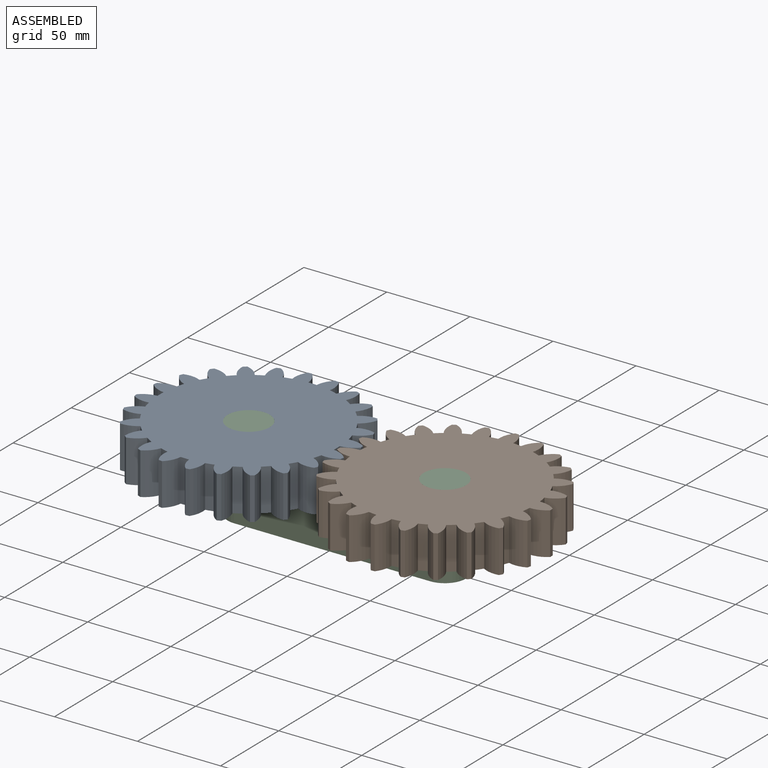
[diagram: assembled view]
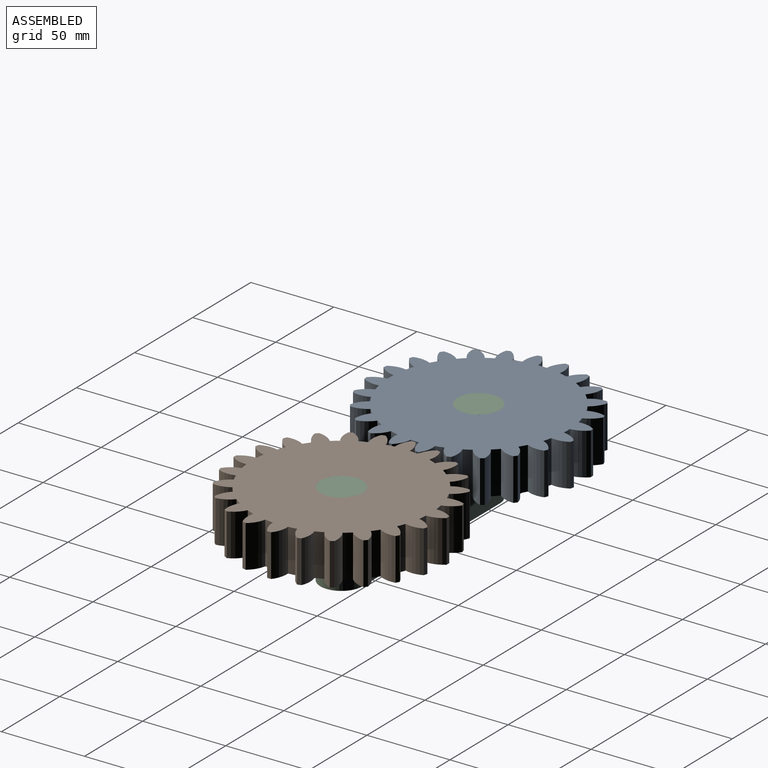
[diagram: assembled view, second angle]
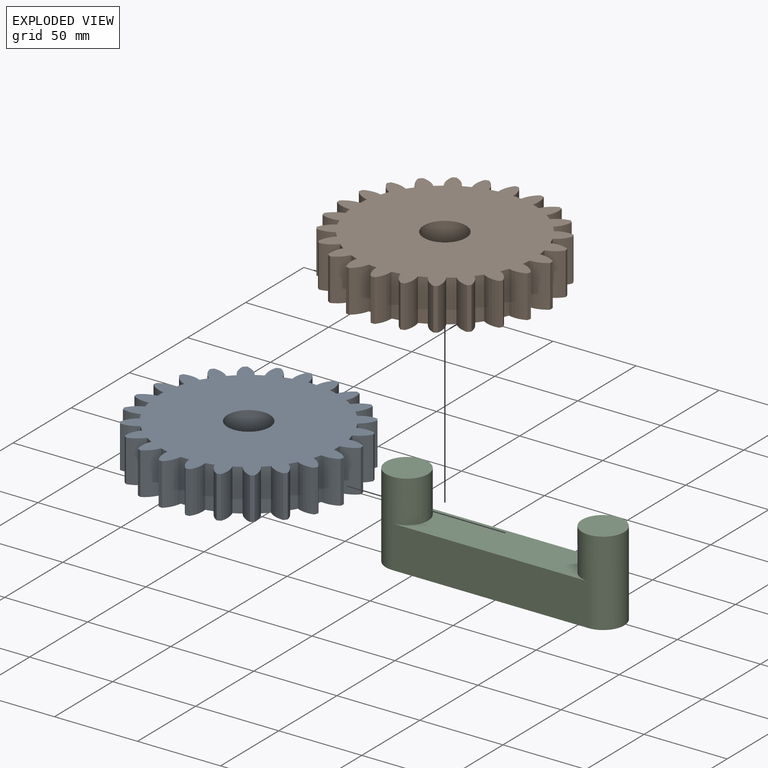
[diagram: exploded view]
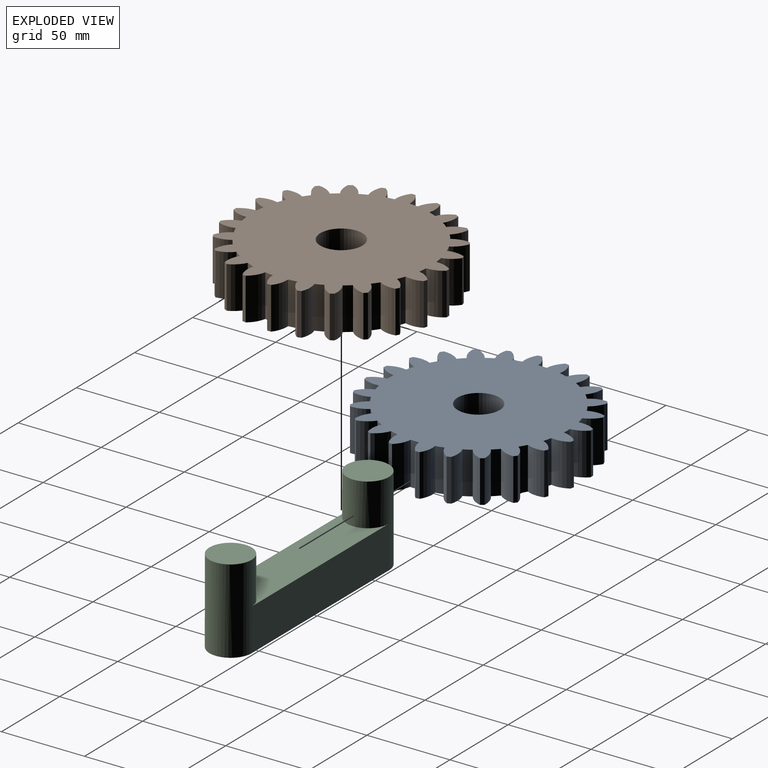
[diagram: exploded view, second angle]
ASSEMBLY  parts=3 mates=2
PART A: 99 faces, bbox 126.9x126.9x25.4 mm
  f0: cylinder r=53.72mm len=25.4mm, axis (0,0,1), area 129.2mm2, adj f23,f28,f29,f47
  f1: cylinder r=53.72mm len=25.4mm, axis (0,0,1), area 129.2mm2, adj f28,f29,f46,f50
  f2: cylinder r=53.72mm len=25.4mm, axis (0,0,1), area 129.2mm2, adj f28,f29,f49,f53
  f3: cylinder r=53.72mm len=25.4mm, axis (0,0,1), area 129.2mm2, adj f28,f29,f59,f62
  f4: cylinder r=53.72mm len=25.4mm, axis (0,0,1), area 129.2mm2, adj f28,f29,f56,f58
  f5: cylinder r=53.72mm len=25.4mm, axis (0,0,1), area 129.2mm2, adj f28,f29,f52,f55
  f6: cylinder r=53.72mm len=25.4mm, axis (0,0,1), area 129.2mm2, adj f28,f29,f61,f65
  f7: cylinder r=53.72mm len=25.4mm, axis (0,0,1), area 129.2mm2, adj f28,f29,f74,f77
  f8: cylinder r=53.72mm len=25.4mm, axis (0,0,1), area 129.2mm2, adj f28,f29,f68,f71
  f9: cylinder r=53.72mm len=25.4mm, axis (0,0,1), area 129.2mm2, adj f28,f29,f64,f67
  f10: cylinder r=53.72mm len=25.4mm, axis (0,0,1), area 129.2mm2, adj f28,f29,f70,f73
  f11: cylinder r=53.72mm len=25.4mm, axis (0,0,1), area 129.2mm2, adj f28,f29,f83,f86
  f12: cylinder r=53.72mm len=25.4mm, axis (0,0,1), area 129.2mm2, adj f28,f29,f76,f80
  f13: cylinder r=53.72mm len=25.4mm, axis (0,0,1), area 129.2mm2, adj f28,f29,f95,f97
  f14: cylinder r=53.72mm len=25.4mm, axis (0,0,1), area 129.2mm2, adj f28,f29,f92,f94
  f15: cylinder r=53.72mm len=25.4mm, axis (0,0,1), area 129.2mm2, adj f28,f29,f35,f38
  f16: cylinder r=53.72mm len=25.4mm, axis (0,0,1), area 129.2mm2, adj f28,f29,f37,f41
  f17: cylinder r=53.72mm len=25.4mm, axis (0,0,1), area 129.2mm2, adj f28,f29,f32,f34
  f18: cylinder r=53.72mm len=25.4mm, axis (0,0,1), area 129.2mm2, adj f28,f29,f40,f43
  f19: cylinder r=53.72mm len=25.4mm, axis (0,0,1), area 129.2mm2, adj f28,f29,f79,f82
  f20: cylinder r=53.72mm len=25.4mm, axis (0,0,1), area 129.2mm2, adj f28,f29,f85,f89
  f21: cylinder r=53.72mm len=25.4mm, axis (0,0,1), area 129.2mm2, adj f28,f29,f88,f91
  f22: cylinder r=53.72mm len=25.4mm, axis (0,0,1), area 129.2mm2, adj f28,f29,f31,f96
  f23: cylinder r=14.61mm len=25.4mm, axis (0,0,1), area 272.6mm2, adj f0,f26,f28,f29
  f24: cylinder r=53.72mm len=25.4mm, axis (0,0,1), area 129.2mm2, adj f25,f28,f29,f44
  f25: cylinder r=14.61mm len=25.4mm, axis (0,0,1), area 272.6mm2, adj f24,f26,f28,f29
  f26: plane 25.4x2.29mm, normal (0.2,0.98,0), area 59.2mm2, adj f23,f25,f28,f29
  f27: cylinder r=12.7mm len=25.4mm, axis (0,0,1), area 2026.8mm2, adj f28,f29
  f28: plane 126.86x126.86mm, normal (0,0,-1), area 10212.5mm2, adj f0,f1,f2,f3,f4,f5,f6,f7
  f29: plane 126.86x126.86mm, normal (0,0,1), area 10212.5mm2, adj f0,f1,f2,f3,f4,f5,f6,f7
  f30: plane 25.4x2.33mm, normal (1,0.07,0), area 59.2mm2, adj f28,f29,f31,f32
  f31: cylinder r=14.61mm len=25.4mm, axis (0,0,1), area 272.6mm2, adj f22,f28,f29,f30
  f32: cylinder r=14.61mm len=25.4mm, axis (0,0,1), area 272.6mm2, adj f17,f28,f29,f30
  f33: plane 25.4x2.21mm, normal (0.95,0.32,0), area 59.2mm2, adj f28,f29,f34,f35
  f34: cylinder r=14.61mm len=25.4mm, axis (0,0,1), area 272.6mm2, adj f17,f28,f29,f33
  f35: cylinder r=14.61mm len=25.4mm, axis (0,0,1), area 272.6mm2, adj f15,f28,f29,f33
  f36: plane 25.4x1.94mm, normal (0.83,0.56,0), area 59.2mm2, adj f28,f29,f37,f38
  f37: cylinder r=14.61mm len=25.4mm, axis (0,0,1), area 272.6mm2, adj f16,f28,f29,f36
  f38: cylinder r=14.61mm len=25.4mm, axis (0,0,1), area 272.6mm2, adj f15,f28,f29,f36
  f39: plane 25.4x1.75mm, normal (0.66,0.75,0), area 59.2mm2, adj f28,f29,f40,f41
  f40: cylinder r=14.61mm len=25.4mm, axis (0,0,1), area 272.6mm2, adj f18,f28,f29,f39
  f41: cylinder r=14.61mm len=25.4mm, axis (0,0,1), area 272.6mm2, adj f16,f28,f29,f39
  f42: plane 25.4x2.09mm, normal (0.44,0.9,0), area 59.2mm2, adj f28,f29,f43,f44
  f43: cylinder r=14.61mm len=25.4mm, axis (0,0,1), area 272.6mm2, adj f18,f28,f29,f42
  f44: cylinder r=14.61mm len=25.4mm, axis (0,0,1), area 272.6mm2, adj f24,f28,f29,f42
  f45: plane 25.4x2.33mm, normal (-0.07,1,0), area 59.2mm2, adj f28,f29,f46,f47
  f46: cylinder r=14.61mm len=25.4mm, axis (0,0,1), area 272.6mm2, adj f1,f28,f29,f45
  f47: cylinder r=14.61mm len=25.4mm, axis (0,0,1), area 272.6mm2, adj f0,f28,f29,f45
  f48: plane 25.4x2.21mm, normal (-0.32,0.95,0), area 59.2mm2, adj f28,f29,f49,f50
  f49: cylinder r=14.61mm len=25.4mm, axis (0,0,1), area 272.6mm2, adj f2,f28,f29,f48
  f50: cylinder r=14.61mm len=25.4mm, axis (0,0,1), area 272.6mm2, adj f1,f28,f29,f48
  f51: plane 25.4x1.94mm, normal (-0.56,0.83,0), area 59.2mm2, adj f28,f29,f52,f53
  f52: cylinder r=14.61mm len=25.4mm, axis (0,0,1), area 272.6mm2, adj f5,f28,f29,f51
  f53: cylinder r=14.61mm len=25.4mm, axis (0,0,1), area 272.6mm2, adj f2,f28,f29,f51
  f54: plane 25.4x1.75mm, normal (-0.75,0.66,0), area 59.2mm2, adj f28,f29,f55,f56
  f55: cylinder r=14.61mm len=25.4mm, axis (0,0,1), area 272.6mm2, adj f5,f28,f29,f54
  f56: cylinder r=14.61mm len=25.4mm, axis (0,0,1), area 272.6mm2, adj f4,f28,f29,f54
  f57: plane 25.4x2.09mm, normal (-0.9,0.44,0), area 59.2mm2, adj f28,f29,f58,f59
  f58: cylinder r=14.61mm len=25.4mm, axis (0,0,1), area 272.6mm2, adj f4,f28,f29,f57
  f59: cylinder r=14.61mm len=25.4mm, axis (0,0,1), area 272.6mm2, adj f3,f28,f29,f57
  f60: plane 25.4x2.29mm, normal (-0.98,0.2,0), area 59.2mm2, adj f28,f29,f61,f62
  f61: cylinder r=14.61mm len=25.4mm, axis (0,0,1), area 272.6mm2, adj f6,f28,f29,f60
  f62: cylinder r=14.61mm len=25.4mm, axis (0,0,1), area 272.6mm2, adj f3,f28,f29,f60
  f63: plane 25.4x2.33mm, normal (-1,-0.07,0), area 59.2mm2, adj f28,f29,f64,f65
  f64: cylinder r=14.61mm len=25.4mm, axis (0,0,1), area 272.6mm2, adj f9,f28,f29,f63
  f65: cylinder r=14.61mm len=25.4mm, axis (0,0,1), area 272.6mm2, adj f6,f28,f29,f63
  f66: plane 25.4x2.21mm, normal (-0.95,-0.32,0), area 59.2mm2, adj f28,f29,f67,f68
  f67: cylinder r=14.61mm len=25.4mm, axis (0,0,1), area 272.6mm2, adj f9,f28,f29,f66
  f68: cylinder r=14.61mm len=25.4mm, axis (0,0,1), area 272.6mm2, adj f8,f28,f29,f66
  f69: plane 25.4x1.94mm, normal (-0.83,-0.56,0), area 59.2mm2, adj f28,f29,f70,f71
  f70: cylinder r=14.61mm len=25.4mm, axis (0,0,1), area 272.6mm2, adj f10,f28,f29,f69
  f71: cylinder r=14.61mm len=25.4mm, axis (0,0,1), area 272.6mm2, adj f8,f28,f29,f69
  f72: plane 25.4x1.75mm, normal (-0.66,-0.75,0), area 59.2mm2, adj f28,f29,f73,f74
  f73: cylinder r=14.61mm len=25.4mm, axis (0,0,1), area 272.6mm2, adj f10,f28,f29,f72
  f74: cylinder r=14.61mm len=25.4mm, axis (0,0,1), area 272.6mm2, adj f7,f28,f29,f72
  f75: plane 25.4x2.09mm, normal (-0.44,-0.9,0), area 59.2mm2, adj f28,f29,f76,f77
  f76: cylinder r=14.61mm len=25.4mm, axis (0,0,1), area 272.6mm2, adj f12,f28,f29,f75
  f77: cylinder r=14.61mm len=25.4mm, axis (0,0,1), area 272.6mm2, adj f7,f28,f29,f75
  f78: plane 25.4x2.29mm, normal (-0.2,-0.98,0), area 59.2mm2, adj f28,f29,f79,f80
  f79: cylinder r=14.61mm len=25.4mm, axis (0,0,1), area 272.6mm2, adj f19,f28,f29,f78
  f80: cylinder r=14.61mm len=25.4mm, axis (0,0,1), area 272.6mm2, adj f12,f28,f29,f78
  f81: plane 25.4x2.33mm, normal (0.07,-1,0), area 59.2mm2, adj f28,f29,f82,f83
  f82: cylinder r=14.61mm len=25.4mm, axis (0,0,1), area 272.6mm2, adj f19,f28,f29,f81
  f83: cylinder r=14.61mm len=25.4mm, axis (0,0,1), area 272.6mm2, adj f11,f28,f29,f81
  f84: plane 25.4x2.21mm, normal (0.32,-0.95,0), area 59.2mm2, adj f28,f29,f85,f86
  f85: cylinder r=14.61mm len=25.4mm, axis (0,0,1), area 272.6mm2, adj f20,f28,f29,f84
  f86: cylinder r=14.61mm len=25.4mm, axis (0,0,1), area 272.6mm2, adj f11,f28,f29,f84
  f87: plane 25.4x1.94mm, normal (0.56,-0.83,0), area 59.2mm2, adj f28,f29,f88,f89
  f88: cylinder r=14.61mm len=25.4mm, axis (0,0,1), area 272.6mm2, adj f21,f28,f29,f87
  f89: cylinder r=14.61mm len=25.4mm, axis (0,0,1), area 272.6mm2, adj f20,f28,f29,f87
  f90: plane 25.4x1.75mm, normal (0.75,-0.66,0), area 59.2mm2, adj f28,f29,f91,f92
  f91: cylinder r=14.61mm len=25.4mm, axis (0,0,1), area 272.6mm2, adj f21,f28,f29,f90
  f92: cylinder r=14.61mm len=25.4mm, axis (0,0,1), area 272.6mm2, adj f14,f28,f29,f90
  f93: plane 25.4x2.09mm, normal (0.9,-0.44,0), area 59.2mm2, adj f28,f29,f94,f95
  f94: cylinder r=14.61mm len=25.4mm, axis (0,0,1), area 272.6mm2, adj f14,f28,f29,f93
  f95: cylinder r=14.61mm len=25.4mm, axis (0,0,1), area 272.6mm2, adj f13,f28,f29,f93
  f96: cylinder r=14.61mm len=25.4mm, axis (0,0,1), area 272.6mm2, adj f22,f28,f29,f98
  f97: cylinder r=14.61mm len=25.4mm, axis (0,0,1), area 272.6mm2, adj f13,f28,f29,f98
  f98: plane 25.4x2.29mm, normal (0.98,-0.2,0), area 59.2mm2, adj f28,f29,f96,f97
PART B: 99 faces, bbox 126.9x126.9x25.4 mm
  f0: cylinder r=53.72mm len=25.4mm, axis (0,0,1), area 129.2mm2, adj f23,f28,f29,f47
  f1: cylinder r=53.72mm len=25.4mm, axis (0,0,1), area 129.2mm2, adj f28,f29,f46,f50
  f2: cylinder r=53.72mm len=25.4mm, axis (0,0,1), area 129.2mm2, adj f28,f29,f49,f53
  f3: cylinder r=53.72mm len=25.4mm, axis (0,0,1), area 129.2mm2, adj f28,f29,f59,f62
  f4: cylinder r=53.72mm len=25.4mm, axis (0,0,1), area 129.2mm2, adj f28,f29,f56,f58
  f5: cylinder r=53.72mm len=25.4mm, axis (0,0,1), area 129.2mm2, adj f28,f29,f52,f55
  f6: cylinder r=53.72mm len=25.4mm, axis (0,0,1), area 129.2mm2, adj f28,f29,f61,f65
  f7: cylinder r=53.72mm len=25.4mm, axis (0,0,1), area 129.2mm2, adj f28,f29,f74,f77
  f8: cylinder r=53.72mm len=25.4mm, axis (0,0,1), area 129.2mm2, adj f28,f29,f68,f71
  f9: cylinder r=53.72mm len=25.4mm, axis (0,0,1), area 129.2mm2, adj f28,f29,f64,f67
  f10: cylinder r=53.72mm len=25.4mm, axis (0,0,1), area 129.2mm2, adj f28,f29,f70,f73
  f11: cylinder r=53.72mm len=25.4mm, axis (0,0,1), area 129.2mm2, adj f28,f29,f83,f86
  f12: cylinder r=53.72mm len=25.4mm, axis (0,0,1), area 129.2mm2, adj f28,f29,f76,f80
  f13: cylinder r=53.72mm len=25.4mm, axis (0,0,1), area 129.2mm2, adj f28,f29,f95,f97
  f14: cylinder r=53.72mm len=25.4mm, axis (0,0,1), area 129.2mm2, adj f28,f29,f92,f94
  f15: cylinder r=53.72mm len=25.4mm, axis (0,0,1), area 129.2mm2, adj f28,f29,f35,f38
  f16: cylinder r=53.72mm len=25.4mm, axis (0,0,1), area 129.2mm2, adj f28,f29,f37,f41
  f17: cylinder r=53.72mm len=25.4mm, axis (0,0,1), area 129.2mm2, adj f28,f29,f32,f34
  f18: cylinder r=53.72mm len=25.4mm, axis (0,0,1), area 129.2mm2, adj f28,f29,f40,f43
  f19: cylinder r=53.72mm len=25.4mm, axis (0,0,1), area 129.2mm2, adj f28,f29,f79,f82
  f20: cylinder r=53.72mm len=25.4mm, axis (0,0,1), area 129.2mm2, adj f28,f29,f85,f89
  f21: cylinder r=53.72mm len=25.4mm, axis (0,0,1), area 129.2mm2, adj f28,f29,f88,f91
  f22: cylinder r=53.72mm len=25.4mm, axis (0,0,1), area 129.2mm2, adj f28,f29,f31,f96
  f23: cylinder r=14.61mm len=25.4mm, axis (0,0,1), area 272.6mm2, adj f0,f26,f28,f29
  f24: cylinder r=53.72mm len=25.4mm, axis (0,0,1), area 129.2mm2, adj f25,f28,f29,f44
  f25: cylinder r=14.61mm len=25.4mm, axis (0,0,1), area 272.6mm2, adj f24,f26,f28,f29
  f26: plane 25.4x2.29mm, normal (0.2,0.98,0), area 59.2mm2, adj f23,f25,f28,f29
  f27: cylinder r=12.7mm len=25.4mm, axis (0,0,1), area 2026.8mm2, adj f28,f29
  f28: plane 126.86x126.86mm, normal (0,0,-1), area 10212.5mm2, adj f0,f1,f2,f3,f4,f5,f6,f7
  f29: plane 126.86x126.86mm, normal (0,0,1), area 10212.5mm2, adj f0,f1,f2,f3,f4,f5,f6,f7
  f30: plane 25.4x2.33mm, normal (1,0.07,0), area 59.2mm2, adj f28,f29,f31,f32
  f31: cylinder r=14.61mm len=25.4mm, axis (0,0,1), area 272.6mm2, adj f22,f28,f29,f30
  f32: cylinder r=14.61mm len=25.4mm, axis (0,0,1), area 272.6mm2, adj f17,f28,f29,f30
  f33: plane 25.4x2.21mm, normal (0.95,0.32,0), area 59.2mm2, adj f28,f29,f34,f35
  f34: cylinder r=14.61mm len=25.4mm, axis (0,0,1), area 272.6mm2, adj f17,f28,f29,f33
  f35: cylinder r=14.61mm len=25.4mm, axis (0,0,1), area 272.6mm2, adj f15,f28,f29,f33
  f36: plane 25.4x1.94mm, normal (0.83,0.56,0), area 59.2mm2, adj f28,f29,f37,f38
  f37: cylinder r=14.61mm len=25.4mm, axis (0,0,1), area 272.6mm2, adj f16,f28,f29,f36
  f38: cylinder r=14.61mm len=25.4mm, axis (0,0,1), area 272.6mm2, adj f15,f28,f29,f36
  f39: plane 25.4x1.75mm, normal (0.66,0.75,0), area 59.2mm2, adj f28,f29,f40,f41
  f40: cylinder r=14.61mm len=25.4mm, axis (0,0,1), area 272.6mm2, adj f18,f28,f29,f39
  f41: cylinder r=14.61mm len=25.4mm, axis (0,0,1), area 272.6mm2, adj f16,f28,f29,f39
  f42: plane 25.4x2.09mm, normal (0.44,0.9,0), area 59.2mm2, adj f28,f29,f43,f44
  f43: cylinder r=14.61mm len=25.4mm, axis (0,0,1), area 272.6mm2, adj f18,f28,f29,f42
  f44: cylinder r=14.61mm len=25.4mm, axis (0,0,1), area 272.6mm2, adj f24,f28,f29,f42
  f45: plane 25.4x2.33mm, normal (-0.07,1,0), area 59.2mm2, adj f28,f29,f46,f47
  f46: cylinder r=14.61mm len=25.4mm, axis (0,0,1), area 272.6mm2, adj f1,f28,f29,f45
  f47: cylinder r=14.61mm len=25.4mm, axis (0,0,1), area 272.6mm2, adj f0,f28,f29,f45
  f48: plane 25.4x2.21mm, normal (-0.32,0.95,0), area 59.2mm2, adj f28,f29,f49,f50
  f49: cylinder r=14.61mm len=25.4mm, axis (0,0,1), area 272.6mm2, adj f2,f28,f29,f48
  f50: cylinder r=14.61mm len=25.4mm, axis (0,0,1), area 272.6mm2, adj f1,f28,f29,f48
  f51: plane 25.4x1.94mm, normal (-0.56,0.83,0), area 59.2mm2, adj f28,f29,f52,f53
  f52: cylinder r=14.61mm len=25.4mm, axis (0,0,1), area 272.6mm2, adj f5,f28,f29,f51
  f53: cylinder r=14.61mm len=25.4mm, axis (0,0,1), area 272.6mm2, adj f2,f28,f29,f51
  f54: plane 25.4x1.75mm, normal (-0.75,0.66,0), area 59.2mm2, adj f28,f29,f55,f56
  f55: cylinder r=14.61mm len=25.4mm, axis (0,0,1), area 272.6mm2, adj f5,f28,f29,f54
  f56: cylinder r=14.61mm len=25.4mm, axis (0,0,1), area 272.6mm2, adj f4,f28,f29,f54
  f57: plane 25.4x2.09mm, normal (-0.9,0.44,0), area 59.2mm2, adj f28,f29,f58,f59
  f58: cylinder r=14.61mm len=25.4mm, axis (0,0,1), area 272.6mm2, adj f4,f28,f29,f57
  f59: cylinder r=14.61mm len=25.4mm, axis (0,0,1), area 272.6mm2, adj f3,f28,f29,f57
  f60: plane 25.4x2.29mm, normal (-0.98,0.2,0), area 59.2mm2, adj f28,f29,f61,f62
  f61: cylinder r=14.61mm len=25.4mm, axis (0,0,1), area 272.6mm2, adj f6,f28,f29,f60
  f62: cylinder r=14.61mm len=25.4mm, axis (0,0,1), area 272.6mm2, adj f3,f28,f29,f60
  f63: plane 25.4x2.33mm, normal (-1,-0.07,0), area 59.2mm2, adj f28,f29,f64,f65
  f64: cylinder r=14.61mm len=25.4mm, axis (0,0,1), area 272.6mm2, adj f9,f28,f29,f63
  f65: cylinder r=14.61mm len=25.4mm, axis (0,0,1), area 272.6mm2, adj f6,f28,f29,f63
  f66: plane 25.4x2.21mm, normal (-0.95,-0.32,0), area 59.2mm2, adj f28,f29,f67,f68
  f67: cylinder r=14.61mm len=25.4mm, axis (0,0,1), area 272.6mm2, adj f9,f28,f29,f66
  f68: cylinder r=14.61mm len=25.4mm, axis (0,0,1), area 272.6mm2, adj f8,f28,f29,f66
  f69: plane 25.4x1.94mm, normal (-0.83,-0.56,0), area 59.2mm2, adj f28,f29,f70,f71
  f70: cylinder r=14.61mm len=25.4mm, axis (0,0,1), area 272.6mm2, adj f10,f28,f29,f69
  f71: cylinder r=14.61mm len=25.4mm, axis (0,0,1), area 272.6mm2, adj f8,f28,f29,f69
  f72: plane 25.4x1.75mm, normal (-0.66,-0.75,0), area 59.2mm2, adj f28,f29,f73,f74
  f73: cylinder r=14.61mm len=25.4mm, axis (0,0,1), area 272.6mm2, adj f10,f28,f29,f72
  f74: cylinder r=14.61mm len=25.4mm, axis (0,0,1), area 272.6mm2, adj f7,f28,f29,f72
  f75: plane 25.4x2.09mm, normal (-0.44,-0.9,0), area 59.2mm2, adj f28,f29,f76,f77
  f76: cylinder r=14.61mm len=25.4mm, axis (0,0,1), area 272.6mm2, adj f12,f28,f29,f75
  f77: cylinder r=14.61mm len=25.4mm, axis (0,0,1), area 272.6mm2, adj f7,f28,f29,f75
  f78: plane 25.4x2.29mm, normal (-0.2,-0.98,0), area 59.2mm2, adj f28,f29,f79,f80
  f79: cylinder r=14.61mm len=25.4mm, axis (0,0,1), area 272.6mm2, adj f19,f28,f29,f78
  f80: cylinder r=14.61mm len=25.4mm, axis (0,0,1), area 272.6mm2, adj f12,f28,f29,f78
  f81: plane 25.4x2.33mm, normal (0.07,-1,0), area 59.2mm2, adj f28,f29,f82,f83
  f82: cylinder r=14.61mm len=25.4mm, axis (0,0,1), area 272.6mm2, adj f19,f28,f29,f81
  f83: cylinder r=14.61mm len=25.4mm, axis (0,0,1), area 272.6mm2, adj f11,f28,f29,f81
  f84: plane 25.4x2.21mm, normal (0.32,-0.95,0), area 59.2mm2, adj f28,f29,f85,f86
  f85: cylinder r=14.61mm len=25.4mm, axis (0,0,1), area 272.6mm2, adj f20,f28,f29,f84
  f86: cylinder r=14.61mm len=25.4mm, axis (0,0,1), area 272.6mm2, adj f11,f28,f29,f84
  f87: plane 25.4x1.94mm, normal (0.56,-0.83,0), area 59.2mm2, adj f28,f29,f88,f89
  f88: cylinder r=14.61mm len=25.4mm, axis (0,0,1), area 272.6mm2, adj f21,f28,f29,f87
  f89: cylinder r=14.61mm len=25.4mm, axis (0,0,1), area 272.6mm2, adj f20,f28,f29,f87
  f90: plane 25.4x1.75mm, normal (0.75,-0.66,0), area 59.2mm2, adj f28,f29,f91,f92
  f91: cylinder r=14.61mm len=25.4mm, axis (0,0,1), area 272.6mm2, adj f21,f28,f29,f90
  f92: cylinder r=14.61mm len=25.4mm, axis (0,0,1), area 272.6mm2, adj f14,f28,f29,f90
  f93: plane 25.4x2.09mm, normal (0.9,-0.44,0), area 59.2mm2, adj f28,f29,f94,f95
  f94: cylinder r=14.61mm len=25.4mm, axis (0,0,1), area 272.6mm2, adj f14,f28,f29,f93
  f95: cylinder r=14.61mm len=25.4mm, axis (0,0,1), area 272.6mm2, adj f13,f28,f29,f93
  f96: cylinder r=14.61mm len=25.4mm, axis (0,0,1), area 272.6mm2, adj f22,f28,f29,f98
  f97: cylinder r=14.61mm len=25.4mm, axis (0,0,1), area 272.6mm2, adj f13,f28,f29,f98
  f98: plane 25.4x2.29mm, normal (0.98,-0.2,0), area 59.2mm2, adj f28,f29,f96,f97
PART C: 8 faces, bbox 143.5x25.4x50.8 mm
  f0: plane 118.11x25.4mm, normal (0,0,1), area 2493.3mm2, adj f1,f2,f3,f4
  f1: cylinder r=12.7mm len=50.8mm, axis (0,0,-1), area 3040.2mm2, adj f0,f2,f4,f5,f6
  f2: plane 118.11x25.4mm, normal (0,-1,0), area 3000mm2, adj f0,f1,f3,f5
  f3: cylinder r=12.7mm len=50.8mm, axis (0,0,-1), area 3040.2mm2, adj f0,f2,f4,f5,f7
  f4: plane 118.11x25.4mm, normal (0,1,0), area 3000mm2, adj f0,f1,f3,f5
  f5: plane 143.51x25.4mm, normal (0,0,-1), area 3506.7mm2, adj f1,f2,f3,f4
  f6: plane 25.4x25.4mm, normal (0,0,1), area 506.7mm2, adj f1
  f7: plane 25.4x25.4mm, normal (0,0,1), area 506.7mm2, adj f3
PLACE A rot(axis=(0,0,-1),147.1deg) t=(91.3,-48.29,-6.12)mm
PLACE B rot(axis=(0,0,1),147.1deg) t=(321.76,-111.97,-6.12)mm
PLACE C t=(98.19,-71.66,-6.12)mm fixed
MATE revolute A.f0 <-> C.f1  axis (0,0,1) through (98.19,-58.96,44.68)mm
MATE revolute B.f0 <-> C.f3  axis (0,0,1) through (216.3,-58.96,44.68)mm
